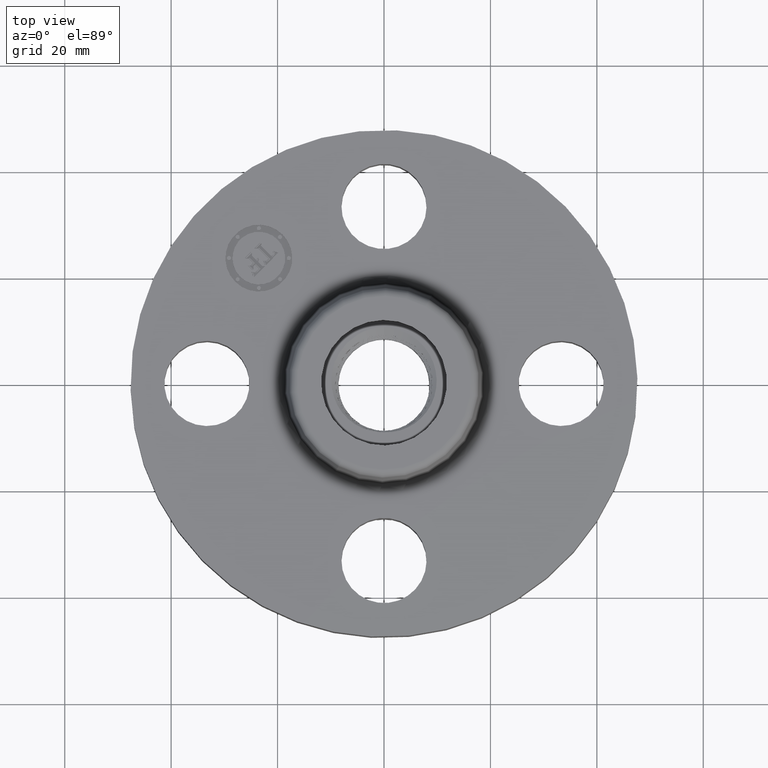
[diagram: clean part render]
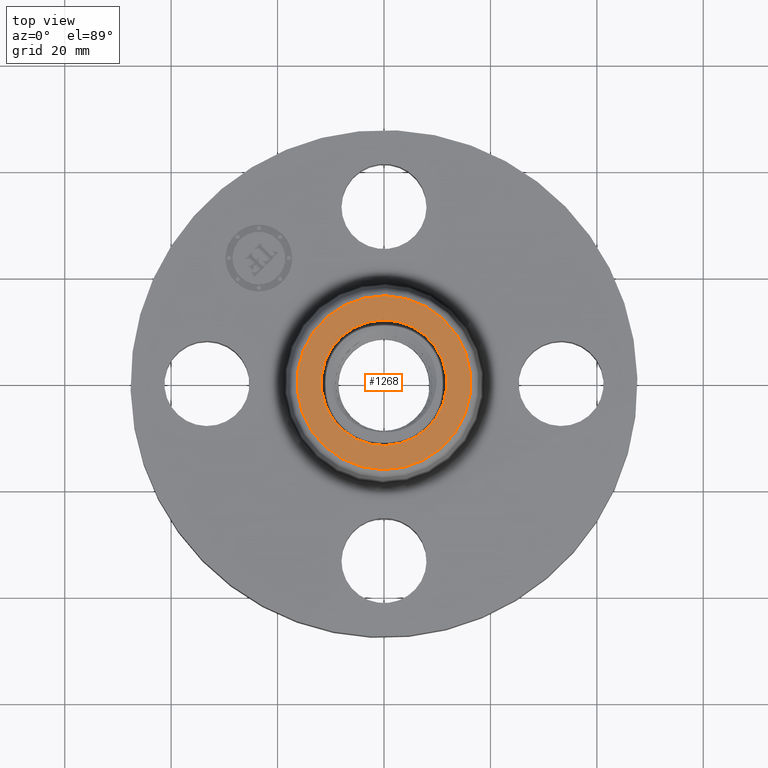
[diagram: same view with one face highlighted and labeled with its STEP entity id]
A machine part, top view. The second image highlights one B-rep face of the part: STEP entity #1268.
In plain terms, the highlighted planar face has unit normal (0, 0, -1).
Its self-contained STEP definition (entity closure, byte-faithful):
#296=AXIS2_PLACEMENT_3D('Circle Axis2P3D',#294,#295,$) ;
#322=AXIS2_PLACEMENT_3D('Circle Axis2P3D',#320,#321,$) ;
#852=AXIS2_PLACEMENT_3D('Circle Axis2P3D',#850,#851,$) ;
#876=AXIS2_PLACEMENT_3D('Circle Axis2P3D',#874,#875,$) ;
#1258=AXIS2_PLACEMENT_3D('Plane Axis2P3D',#1255,#1256,#1257) ;
#294=CARTESIAN_POINT('Axis2P3D Location',(0.,0.,0.880000000004)) ;
#298=CARTESIAN_POINT('Vertex',(-0.222932875452,0.408075891281,0.880000000004)) ;
#300=CARTESIAN_POINT('Vertex',(0.222932875452,-0.408075891281,0.880000000004)) ;
#320=CARTESIAN_POINT('Axis2P3D Location',(0.,0.,0.880000000004)) ;
#847=CARTESIAN_POINT('Vertex',(-0.308380595934,-0.564486894472,0.880000000004)) ;
#850=CARTESIAN_POINT('Axis2P3D Location',(0.,0.,0.880000000004)) ;
#854=CARTESIAN_POINT('Vertex',(0.308380595934,0.564486894472,0.880000000004)) ;
#874=CARTESIAN_POINT('Axis2P3D Location',(0.,0.,0.880000000004)) ;
#1255=CARTESIAN_POINT('Axis2P3D Location',(0.,0.643229388305,0.880000000004)) ;
#295=DIRECTION('Axis2P3D Direction',(0.,0.,0.0393700787402)) ;
#321=DIRECTION('Axis2P3D Direction',(0.,0.,0.0393700787402)) ;
#851=DIRECTION('Axis2P3D Direction',(0.,0.,-0.0393700787402)) ;
#875=DIRECTION('Axis2P3D Direction',(0.,0.,-0.0393700787402)) ;
#1256=DIRECTION('Axis2P3D Direction',(0.,0.,-0.0393700787402)) ;
#1257=DIRECTION('Axis2P3D XDirection',(0.0393700787402,0.,0.)) ;
#1261=ORIENTED_EDGE('',*,*,#878,.F.) ;
#1262=ORIENTED_EDGE('',*,*,#856,.F.) ;
#1265=ORIENTED_EDGE('',*,*,#302,.T.) ;
#1266=ORIENTED_EDGE('',*,*,#324,.T.) ;
#1267=FACE_BOUND('',#1264,.T.) ;
#1268=ADVANCED_FACE('PartBody',(#1263,#1267),#1259,.F.) ;
#297=CIRCLE('generated circle',#296,0.465000000002) ;
#323=CIRCLE('generated circle',#322,0.465000000002) ;
#853=CIRCLE('generated circle',#852,0.643229388305) ;
#877=CIRCLE('generated circle',#876,0.643229388305) ;
#302=EDGE_CURVE('',#299,#301,#297,.F.) ;
#324=EDGE_CURVE('',#301,#299,#323,.F.) ;
#856=EDGE_CURVE('',#848,#855,#853,.T.) ;
#878=EDGE_CURVE('',#855,#848,#877,.T.) ;
#1260=EDGE_LOOP('',(#1261,#1262)) ;
#1264=EDGE_LOOP('',(#1265,#1266)) ;
#1263=FACE_OUTER_BOUND('',#1260,.T.) ;
#1259=PLANE('',#1258) ;
#299=VERTEX_POINT('',#298) ;
#301=VERTEX_POINT('',#300) ;
#848=VERTEX_POINT('',#847) ;
#855=VERTEX_POINT('',#854) ;